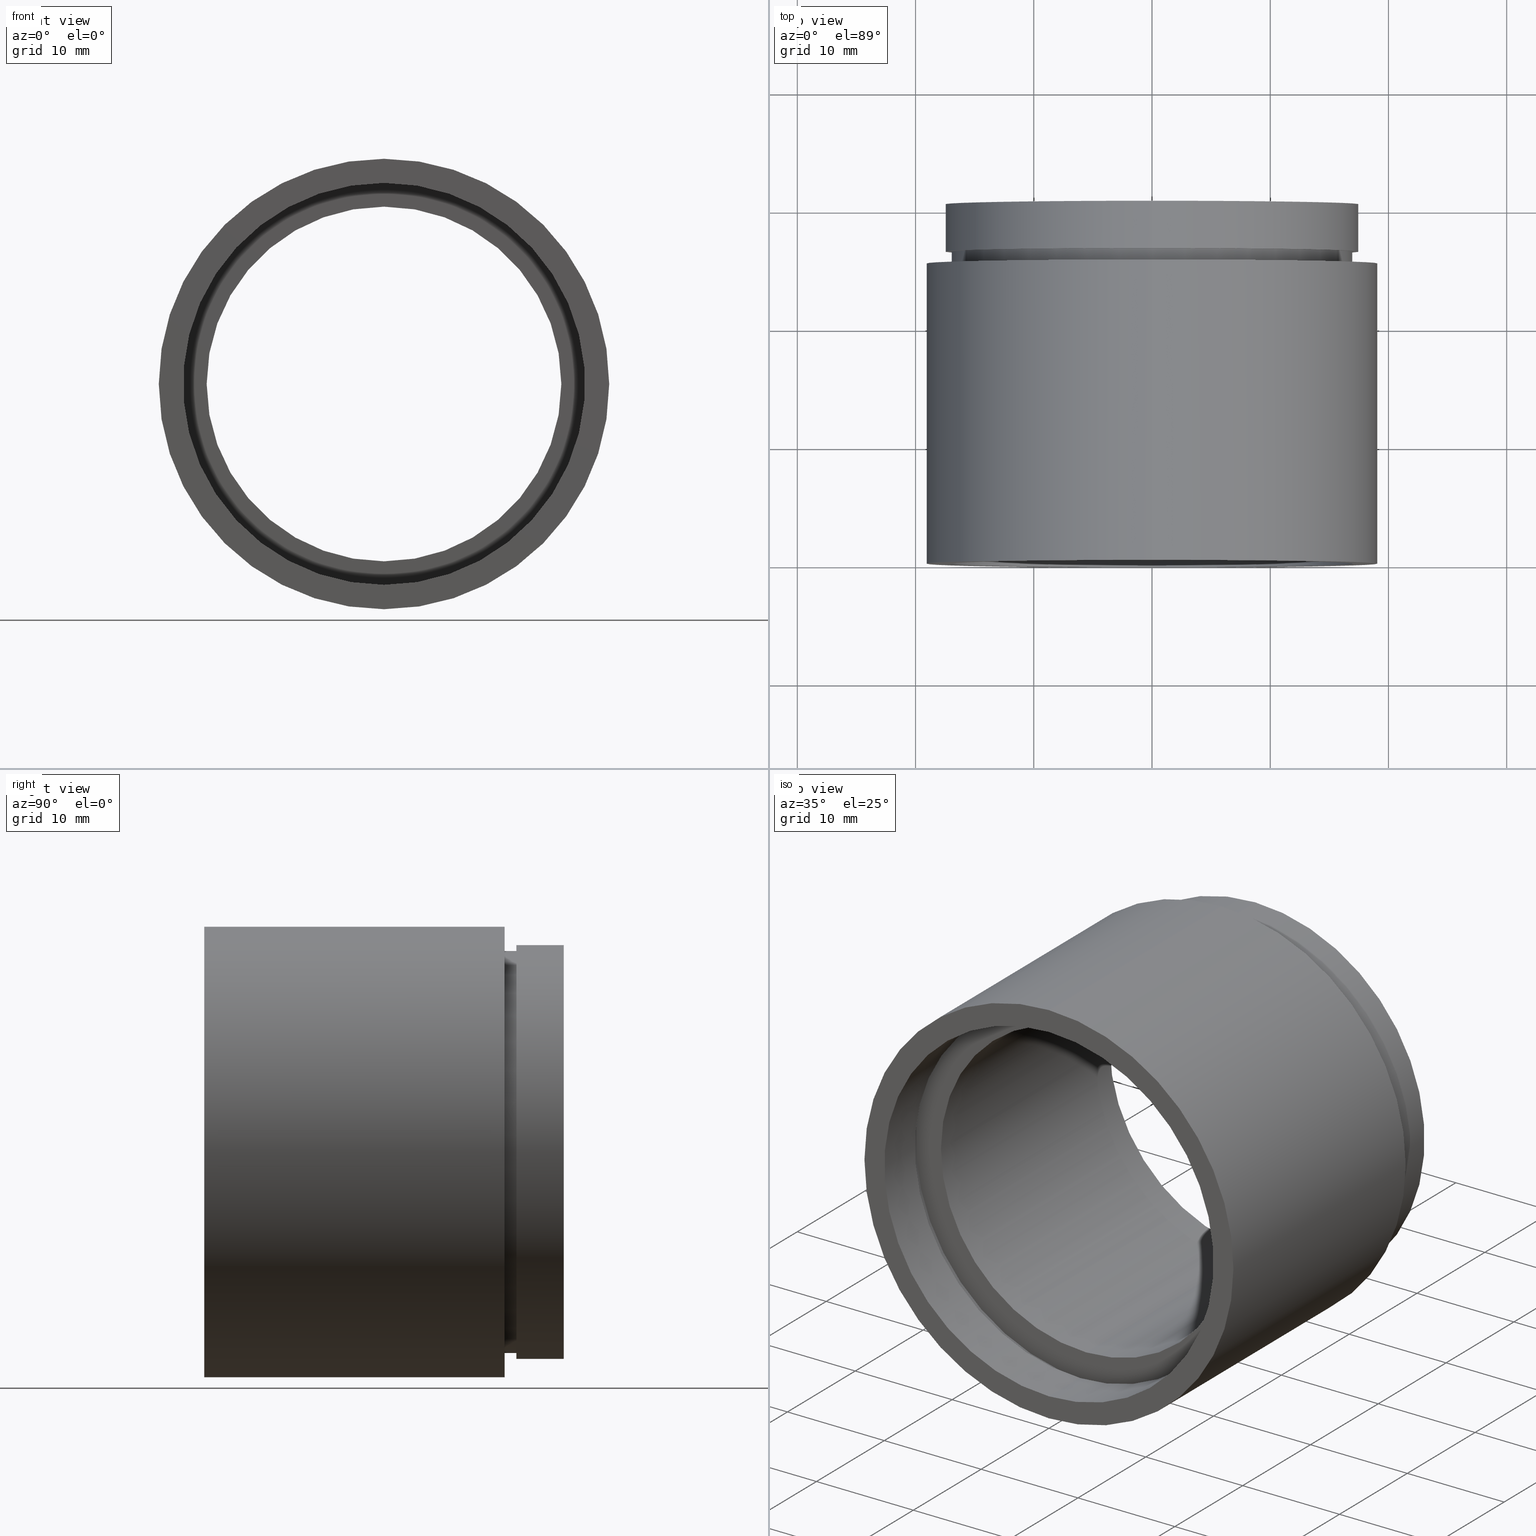
[diagram: canonical four-view strip — front | top / right | iso, engineering-drawing reading convention]
A machine part, canonical four-view strip (front | top / right | iso — engineering-drawing reading convention). The complete STEP part file that produces these views, byte-faithful:
ISO-10303-21;
HEADER;
FILE_DESCRIPTION (( 'STEP AP214' ),
    '1' );
FILE_NAME ('503036.STEP',
    '2019-09-05T09:16:39',
    ( '' ),
    ( '' ),
    'SwSTEP 2.0',
    'SolidWorks 2016',
    '' );
FILE_SCHEMA (( 'AUTOMOTIVE_DESIGN' ));
ENDSEC;

DATA;
#1 = EDGE_CURVE ( 'NONE', #109, #571, #252, .T. ) ;
#2 = ORIENTED_EDGE ( 'NONE', *, *, #201, .T. ) ;
#3 = VECTOR ( 'NONE', #280, 1000.000000000000000 ) ;
#4 = FILL_AREA_STYLE_COLOUR ( '', #563 ) ;
#5 = ORIENTED_EDGE ( 'NONE', *, *, #459, .T. ) ;
#6 = MECHANICAL_DESIGN_GEOMETRIC_PRESENTATION_REPRESENTATION (  '', ( #360 ), #99 ) ;
#7 = ORIENTED_EDGE ( 'NONE', *, *, #586, .F. ) ;
#8 = CARTESIAN_POINT ( 'NONE',  ( 0.0000000000000000000, 161.3761669434274500, 0.0000000000000000000 ) ) ;
#9 = SURFACE_SIDE_STYLE ('',( #372 ) ) ;
#10 = EDGE_LOOP ( 'NONE', ( #527, #57, #158, #417 ) ) ;
#11 = ORIENTED_EDGE ( 'NONE', *, *, #476, .T. ) ;
#12 = SURFACE_STYLE_USAGE ( .BOTH. , #375 ) ;
#13 = DIRECTION ( 'NONE',  ( -0.0000000000000000000, 1.000000000000000000, -0.0000000000000000000 ) ) ;
#14 = EDGE_CURVE ( 'NONE', #580, #85, #590, .T. ) ;
#15 = CARTESIAN_POINT ( 'NONE',  ( 2.155378366499344400E-015, 5.499999999999976900, -17.60000000000002300 ) ) ;
#16 = ADVANCED_FACE ( 'NONE', ( #40 ), #330, .T. ) ;
#17 = VERTEX_POINT ( 'NONE', #206 ) ;
#18 = DIRECTION ( 'NONE',  ( -0.0000000000000000000, 1.000000000000000000, -0.0000000000000000000 ) ) ;
#19 = FACE_OUTER_BOUND ( 'NONE', #166, .T. ) ;
#20 =( GEOMETRIC_REPRESENTATION_CONTEXT ( 3 ) GLOBAL_UNCERTAINTY_ASSIGNED_CONTEXT ( ( #178 ) ) GLOBAL_UNIT_ASSIGNED_CONTEXT ( ( #423, #388, #339 ) ) REPRESENTATION_CONTEXT ( 'NONE', 'WORKASPACE' ) );
#21 = CIRCLE ( 'NONE', #271, 15.00000000000001600 ) ;
#22 =( LENGTH_UNIT ( ) NAMED_UNIT ( * ) SI_UNIT ( .MILLI., .METRE. ) );
#23 = DIRECTION ( 'NONE',  ( 0.0000000000000000000, 0.0000000000000000000, 1.000000000000000000 ) ) ;
#24 = CARTESIAN_POINT ( 'NONE',  ( 0.0000000000000000000, 161.3761669434274500, 0.0000000000000000000 ) ) ;
#25 = EDGE_LOOP ( 'NONE', ( #272, #605 ) ) ;
#26 = FILL_AREA_STYLE ('',( #556 ) ) ;
#27 = ORIENTED_EDGE ( 'NONE', *, *, #586, .T. ) ;
#28 = ADVANCED_FACE ( 'NONE', ( #305 ), #600, .T. ) ;
#29 = AXIS2_PLACEMENT_3D ( 'NONE', #209, #18, #374 ) ;
#30 = FACE_OUTER_BOUND ( 'NONE', #282, .T. ) ;
#31 = CYLINDRICAL_SURFACE ( 'NONE', #496, 17.00000000000001400 ) ;
#32 = DIRECTION ( 'NONE',  ( -0.0000000000000000000, 1.000000000000000000, 0.0000000000000000000 ) ) ;
#33 = DIRECTION ( 'NONE',  ( -0.0000000000000000000, 1.000000000000000000, -0.0000000000000000000 ) ) ;
#34 = AXIS2_PLACEMENT_3D ( 'NONE', #479, #98, #483 ) ;
#35 = CARTESIAN_POINT ( 'NONE',  ( 0.0000000000000000000, 25.39999999999997700, 0.0000000000000000000 ) ) ;
#36 = EDGE_LOOP ( 'NONE', ( #237, #250, #204, #379 ) ) ;
#37 = DIRECTION ( 'NONE',  ( 1.000000000000000000, 0.0000000000000000000, 0.0000000000000000000 ) ) ;
#38 = COLOUR_RGB ( '',1.000000000000000000, 1.000000000000000000, 1.000000000000000000 ) ;
#39 = CIRCLE ( 'NONE', #163, 19.05000000000002200 ) ;
#40 = FACE_OUTER_BOUND ( 'NONE', #198, .T. ) ;
#41 = PRESENTATION_LAYER_ASSIGNMENT (  '', '', ( #248 ) ) ;
#42 = DIRECTION ( 'NONE',  ( 0.0000000000000000000, 0.0000000000000000000, 1.000000000000000000 ) ) ;
#43 = CARTESIAN_POINT ( 'NONE',  ( 2.081899558550503400E-015, 4.499999999999976000, -17.00000000000002500 ) ) ;
#44 = SURFACE_STYLE_USAGE ( .BOTH. , #519 ) ;
#45 = DIRECTION ( 'NONE',  ( 0.0000000000000000000, 0.0000000000000000000, 1.000000000000000000 ) ) ;
#46 = ORIENTED_EDGE ( 'NONE', *, *, #476, .F. ) ;
#47 = MANIFOLD_SOLID_BREP ( '��ת1', #101 ) ;
#48 = COLOUR_RGB ( '',1.000000000000000000, 1.000000000000000000, 1.000000000000000000 ) ;
#49 = SURFACE_STYLE_FILL_AREA ( #123 ) ;
#50 = DIRECTION ( 'NONE',  ( -0.0000000000000000000, 1.000000000000000000, -0.0000000000000000000 ) ) ;
#51 =( GEOMETRIC_REPRESENTATION_CONTEXT ( 3 ) GLOBAL_UNCERTAINTY_ASSIGNED_CONTEXT ( ( #324 ) ) GLOBAL_UNIT_ASSIGNED_CONTEXT ( ( #431, #622, #290 ) ) REPRESENTATION_CONTEXT ( 'NONE', 'WORKASPACE' ) );
#52 = PRODUCT_DEFINITION_CONTEXT ( 'detailed design', #97, 'design' ) ;
#53 = AXIS2_PLACEMENT_3D ( 'NONE', #608, #327, #332 ) ;
#54 = ORIENTED_EDGE ( 'NONE', *, *, #459, .F. ) ;
#55 = AXIS2_PLACEMENT_3D ( 'NONE', #348, #438, #301 ) ;
#56 = CIRCLE ( 'NONE', #157, 19.05000000000002200 ) ;
#57 = ORIENTED_EDGE ( 'NONE', *, *, #14, .T. ) ;
#58 = FACE_BOUND ( 'NONE', #127, .T. ) ;
#59 = EDGE_CURVE ( 'NONE', #60, #140, #366, .T. ) ;
#60 = VERTEX_POINT ( 'NONE', #534 ) ;
#61 =( GEOMETRIC_REPRESENTATION_CONTEXT ( 3 ) GLOBAL_UNCERTAINTY_ASSIGNED_CONTEXT ( ( #159 ) ) GLOBAL_UNIT_ASSIGNED_CONTEXT ( ( #75, #494, #540 ) ) REPRESENTATION_CONTEXT ( 'NONE', 'WORKASPACE' ) );
#62 = VERTEX_POINT ( 'NONE', #361 ) ;
#63 = CARTESIAN_POINT ( 'NONE',  ( 0.0000000000000000000, 161.3761669434274500, 0.0000000000000000000 ) ) ;
#64 = VECTOR ( 'NONE', #146, 1000.000000000000000 ) ;
#65 = CIRCLE ( 'NONE', #399, 19.05000000000002200 ) ;
#66 = CARTESIAN_POINT ( 'NONE',  ( 0.0000000000000000000, 161.3761669434274500, 0.0000000000000000000 ) ) ;
#67 = AXIS2_PLACEMENT_3D ( 'NONE', #170, #602, #548 ) ;
#68 = CARTESIAN_POINT ( 'NONE',  ( 0.0000000000000000000, 26.39999999999997700, 17.50000000000002500 ) ) ;
#69 = CARTESIAN_POINT ( 'NONE',  ( 0.0000000000000000000, 25.39999999999997700, 0.0000000000000000000 ) ) ;
#70 = EDGE_LOOP ( 'NONE', ( #552, #482, #211, #7 ) ) ;
#71 = ADVANCED_FACE ( 'NONE', ( #231 ), #162, .F. ) ;
#72 = CARTESIAN_POINT ( 'NONE',  ( 2.081899558550502300E-015, 161.3761669434274500, -17.00000000000001400 ) ) ;
#73 = VECTOR ( 'NONE', #489, 1000.000000000000000 ) ;
#74 = CIRCLE ( 'NONE', #67, 17.00000000000001400 ) ;
#75 =( LENGTH_UNIT ( ) NAMED_UNIT ( * ) SI_UNIT ( .MILLI., .METRE. ) );
#76 = EDGE_CURVE ( 'NONE', #85, #589, #493, .T. ) ;
#77 = ORIENTED_EDGE ( 'NONE', *, *, #318, .T. ) ;
#78 = CARTESIAN_POINT ( 'NONE',  ( 0.0000000000000000000, 161.3761669434274500, 0.0000000000000000000 ) ) ;
#79 = DIRECTION ( 'NONE',  ( -0.0000000000000000000, 1.000000000000000000, -0.0000000000000000000 ) ) ;
#80 = SURFACE_STYLE_FILL_AREA ( #402 ) ;
#81 = DIRECTION ( 'NONE',  ( -0.0000000000000000000, 1.000000000000000000, -0.0000000000000000000 ) ) ;
#82 = AXIS2_PLACEMENT_3D ( 'NONE', #196, #50, #353 ) ;
#83 = DIRECTION ( 'NONE',  ( -0.0000000000000000000, 1.000000000000000000, -0.0000000000000000000 ) ) ;
#84 = CARTESIAN_POINT ( 'NONE',  ( 17.50000000000002500, 30.39999999999998800, 0.0000000000000000000 ) ) ;
#85 = VERTEX_POINT ( 'NONE', #15 ) ;
#86 = AXIS2_PLACEMENT_3D ( 'NONE', #8, #205, #532 ) ;
#87 = LINE ( 'NONE', #572, #3 ) ;
#88 = CARTESIAN_POINT ( 'NONE',  ( 0.0000000000000000000, -2.775557561562891400E-014, 0.0000000000000000000 ) ) ;
#89 = AXIS2_PLACEMENT_3D ( 'NONE', #173, #32, #381 ) ;
#90 = SURFACE_SIDE_STYLE ('',( #131 ) ) ;
#91 = ORIENTED_EDGE ( 'NONE', *, *, #128, .T. ) ;
#92 = ORIENTED_EDGE ( 'NONE', *, *, #128, .F. ) ;
#93 = COLOUR_RGB ( '',1.000000000000000000, 1.000000000000000000, 1.000000000000000000 ) ;
#94 = DIRECTION ( 'NONE',  ( 0.0000000000000000000, 0.0000000000000000000, 1.000000000000000000 ) ) ;
#95 = LINE ( 'NONE', #239, #358 ) ;
#96 = AXIS2_PLACEMENT_3D ( 'NONE', #35, #283, #617 ) ;
#97 = APPLICATION_CONTEXT ( 'automotive_design' ) ;
#98 = DIRECTION ( 'NONE',  ( -0.0000000000000000000, 1.000000000000000000, -0.0000000000000000000 ) ) ;
#99 =( GEOMETRIC_REPRESENTATION_CONTEXT ( 3 ) GLOBAL_UNCERTAINTY_ASSIGNED_CONTEXT ( ( #511 ) ) GLOBAL_UNIT_ASSIGNED_CONTEXT ( ( #442, #200, #199 ) ) REPRESENTATION_CONTEXT ( 'NONE', 'WORKASPACE' ) );
#100 = AXIS2_PLACEMENT_3D ( 'NONE', #133, #478, #37 ) ;
#101 = CLOSED_SHELL ( 'NONE', ( #458, #129, #503, #262, #28, #169, #322, #16, #387, #553, #382, #273, #181, #543, #559, #512, #122, #71 ) ) ;
#102 = PRODUCT ( '503036', '503036', '', ( #576 ) ) ;
#103 = FACE_OUTER_BOUND ( 'NONE', #148, .T. ) ;
#104 = PRESENTATION_STYLE_ASSIGNMENT (( #385 ) ) ;
#105 = EDGE_CURVE ( 'NONE', #623, #214, #405, .T. ) ;
#106 = CARTESIAN_POINT ( 'NONE',  ( 0.0000000000000000000, 4.499999999999976000, 0.0000000000000000000 ) ) ;
#107 = SURFACE_SIDE_STYLE ('',( #80 ) ) ;
#108 = EDGE_CURVE ( 'NONE', #491, #344, #65, .T. ) ;
#109 = VERTEX_POINT ( 'NONE', #416 ) ;
#110 = ORIENTED_EDGE ( 'NONE', *, *, #59, .F. ) ;
#111 = PRESENTATION_LAYER_ASSIGNMENT (  '', '', ( #260 ) ) ;
#112 = DIRECTION ( 'NONE',  ( 0.0000000000000000000, 0.0000000000000000000, 1.000000000000000000 ) ) ;
#113 =( NAMED_UNIT ( * ) PLANE_ANGLE_UNIT ( ) SI_UNIT ( $, .RADIAN. ) );
#114 = ORIENTED_EDGE ( 'NONE', *, *, #308, .F. ) ;
#115 = VECTOR ( 'NONE', #313, 1000.000000000000000 ) ;
#116 = FACE_OUTER_BOUND ( 'NONE', #441, .T. ) ;
#117 = FACE_OUTER_BOUND ( 'NONE', #70, .T. ) ;
#118 = EDGE_CURVE ( 'NONE', #140, #214, #74, .T. ) ;
#119 = DIRECTION ( 'NONE',  ( -0.0000000000000000000, 1.000000000000000000, -0.0000000000000000000 ) ) ;
#120 = ORIENTED_EDGE ( 'NONE', *, *, #118, .T. ) ;
#121 = ORIENTED_EDGE ( 'NONE', *, *, #281, .F. ) ;
#122 = ADVANCED_FACE ( 'NONE', ( #194, #524 ), #164, .F. ) ;
#123 = FILL_AREA_STYLE ('',( #270 ) ) ;
#124 = AXIS2_PLACEMENT_3D ( 'NONE', #584, #516, #171 ) ;
#125 = CARTESIAN_POINT ( 'NONE',  ( 0.0000000000000000000, -2.775557561562891400E-014, 0.0000000000000000000 ) ) ;
#126 = DIRECTION ( 'NONE',  ( -0.0000000000000000000, 1.000000000000000000, -0.0000000000000000000 ) ) ;
#127 = EDGE_LOOP ( 'NONE', ( #120, #520 ) ) ;
#128 = EDGE_CURVE ( 'NONE', #497, #596, #616, .T. ) ;
#129 = ADVANCED_FACE ( 'NONE', ( #502 ), #444, .F. ) ;
#130 = DIRECTION ( 'NONE',  ( -0.0000000000000000000, 1.000000000000000000, -0.0000000000000000000 ) ) ;
#131 = SURFACE_STYLE_FILL_AREA ( #394 ) ;
#132 = CARTESIAN_POINT ( 'NONE',  ( 0.0000000000000000000, 161.3761669434274500, 0.0000000000000000000 ) ) ;
#133 = CARTESIAN_POINT ( 'NONE',  ( 0.0000000000000000000, 0.0000000000000000000, 0.0000000000000000000 ) ) ;
#134 = MECHANICAL_DESIGN_GEOMETRIC_PRESENTATION_REPRESENTATION (  '', ( #331 ), #51 ) ;
#135 = ORIENTED_EDGE ( 'NONE', *, *, #433, .T. ) ;
#136 = ORIENTED_EDGE ( 'NONE', *, *, #227, .F. ) ;
#137 = MECHANICAL_DESIGN_GEOMETRIC_PRESENTATION_REPRESENTATION (  '', ( #248 ), #594 ) ;
#138 = APPLICATION_PROTOCOL_DEFINITION ( 'draft international standard', 'automotive_design', 1998, #97 ) ;
#139 = PRESENTATION_STYLE_ASSIGNMENT (( #44 ) ) ;
#140 = VERTEX_POINT ( 'NONE', #220 ) ;
#141 = UNCERTAINTY_MEASURE_WITH_UNIT (LENGTH_MEASURE( 1.000000000000000100E-005 ), #577, 'distance_accuracy_value', 'NONE');
#142 = CARTESIAN_POINT ( 'NONE',  ( 0.0000000000000000000, 26.39999999999997700, 0.0000000000000000000 ) ) ;
#143 = ORIENTED_EDGE ( 'NONE', *, *, #207, .T. ) ;
#144 = EDGE_CURVE ( 'NONE', #596, #184, #523, .T. ) ;
#145 = DIRECTION ( 'NONE',  ( 0.0000000000000000000, 0.0000000000000000000, 1.000000000000000000 ) ) ;
#146 = DIRECTION ( 'NONE',  ( -0.0000000000000000000, 1.000000000000000000, -0.0000000000000000000 ) ) ;
#147 = EDGE_CURVE ( 'NONE', #623, #60, #233, .T. ) ;
#148 = EDGE_LOOP ( 'NONE', ( #288, #309, #398, #317 ) ) ;
#149 = CIRCLE ( 'NONE', #507, 17.00000000000002500 ) ;
#150 = SURFACE_STYLE_USAGE ( .BOTH. , #202 ) ;
#151 = LINE ( 'NONE', #224, #286 ) ;
#152 = CIRCLE ( 'NONE', #542, 17.60000000000002300 ) ;
#153 = SURFACE_STYLE_FILL_AREA ( #257 ) ;
#154 = DIRECTION ( 'NONE',  ( -0.0000000000000000000, 1.000000000000000000, -0.0000000000000000000 ) ) ;
#155 = DIRECTION ( 'NONE',  ( 0.0000000000000000000, 0.0000000000000000000, 1.000000000000000000 ) ) ;
#156 =( NAMED_UNIT ( * ) PLANE_ANGLE_UNIT ( ) SI_UNIT ( $, .RADIAN. ) );
#157 = AXIS2_PLACEMENT_3D ( 'NONE', #125, #81, #607 ) ;
#158 = ORIENTED_EDGE ( 'NONE', *, *, #76, .T. ) ;
#159 = UNCERTAINTY_MEASURE_WITH_UNIT (LENGTH_MEASURE( 1.000000000000000100E-005 ), #75, 'distance_accuracy_value', 'NONE');
#160 = DIRECTION ( 'NONE',  ( 0.0000000000000000000, 0.0000000000000000000, 1.000000000000000000 ) ) ;
#161 =( NAMED_UNIT ( * ) SI_UNIT ( $, .STERADIAN. ) SOLID_ANGLE_UNIT ( ) );
#162 = CYLINDRICAL_SURFACE ( 'NONE', #29, 17.00000000000002100 ) ;
#163 = AXIS2_PLACEMENT_3D ( 'NONE', #88, #346, #94 ) ;
#164 = PLANE ( 'NONE',  #425 ) ;
#165 = AXIS2_PLACEMENT_3D ( 'NONE', #588, #359, #155 ) ;
#166 = EDGE_LOOP ( 'NONE', ( #450, #454 ) ) ;
#167 = DIRECTION ( 'NONE',  ( -0.0000000000000000000, 1.000000000000000000, -0.0000000000000000000 ) ) ;
#168 = VECTOR ( 'NONE', #261, 1000.000000000000000 ) ;
#169 = ADVANCED_FACE ( 'NONE', ( #117 ), #485, .T. ) ;
#170 = CARTESIAN_POINT ( 'NONE',  ( 0.0000000000000000000, 26.39999999999997700, 0.0000000000000000000 ) ) ;
#171 = DIRECTION ( 'NONE',  ( 0.0000000000000000000, 0.0000000000000000000, 1.000000000000000000 ) ) ;
#172 = ORIENTED_EDGE ( 'NONE', *, *, #144, .T. ) ;
#173 = CARTESIAN_POINT ( 'NONE',  ( 17.60000000000002300, 5.499999999999983100, 0.0000000000000000000 ) ) ;
#174 = PRODUCT_RELATED_PRODUCT_CATEGORY ( 'part', '', ( #102 ) ) ;
#175 = VECTOR ( 'NONE', #530, 1000.000000000000000 ) ;
#176 = SURFACE_SIDE_STYLE ('',( #49 ) ) ;
#177 = DIRECTION ( 'NONE',  ( 0.0000000000000000000, 0.0000000000000000000, 1.000000000000000000 ) ) ;
#178 = UNCERTAINTY_MEASURE_WITH_UNIT (LENGTH_MEASURE( 1.000000000000000100E-005 ), #423, 'distance_accuracy_value', 'NONE');
#179 = CARTESIAN_POINT ( 'NONE',  ( 0.0000000000000000000, 5.499999999999976900, 17.60000000000002300 ) ) ;
#180 = CARTESIAN_POINT ( 'NONE',  ( 0.0000000000000000000, 26.39999999999997700, 0.0000000000000000000 ) ) ;
#181 = ADVANCED_FACE ( 'NONE', ( #218, #287 ), #510, .F. ) ;
#182 =( NAMED_UNIT ( * ) PLANE_ANGLE_UNIT ( ) SI_UNIT ( $, .RADIAN. ) );
#183 = DIRECTION ( 'NONE',  ( -0.0000000000000000000, 1.000000000000000000, -0.0000000000000000000 ) ) ;
#184 = VERTEX_POINT ( 'NONE', #377 ) ;
#185 = EDGE_CURVE ( 'NONE', #589, #85, #578, .T. ) ;
#186 = CIRCLE ( 'NONE', #124, 17.50000000000002500 ) ;
#187 = EDGE_LOOP ( 'NONE', ( #121, #370, #299, #240 ) ) ;
#188 = VECTOR ( 'NONE', #574, 1000.000000000000000 ) ;
#189 = CARTESIAN_POINT ( 'NONE',  ( 0.0000000000000000000, 161.3761669434274500, 0.0000000000000000000 ) ) ;
#190 = ORIENTED_EDGE ( 'NONE', *, *, #105, .T. ) ;
#191 = VERTEX_POINT ( 'NONE', #334 ) ;
#192 = CARTESIAN_POINT ( 'NONE',  ( 0.0000000000000000000, 161.3761669434274500, 0.0000000000000000000 ) ) ;
#193 = CYLINDRICAL_SURFACE ( 'NONE', #213, 15.00000000000001600 ) ;
#194 = FACE_BOUND ( 'NONE', #230, .T. ) ;
#195 = EDGE_CURVE ( 'NONE', #62, #497, #457, .T. ) ;
#196 = CARTESIAN_POINT ( 'NONE',  ( 0.0000000000000000000, 30.39999999999998400, 0.0000000000000000000 ) ) ;
#197 = CARTESIAN_POINT ( 'NONE',  ( 0.0000000000000000000, 161.3761669434274500, 15.00000000000001600 ) ) ;
#198 = EDGE_LOOP ( 'NONE', ( #389, #292, #27, #593 ) ) ;
#199 =( NAMED_UNIT ( * ) SI_UNIT ( $, .STERADIAN. ) SOLID_ANGLE_UNIT ( ) );
#200 =( NAMED_UNIT ( * ) PLANE_ANGLE_UNIT ( ) SI_UNIT ( $, .RADIAN. ) );
#201 = EDGE_CURVE ( 'NONE', #191, #620, #551, .T. ) ;
#202 = SURFACE_SIDE_STYLE ('',( #153 ) ) ;
#203 = DIRECTION ( 'NONE',  ( 0.0000000000000000000, 0.0000000000000000000, 1.000000000000000000 ) ) ;
#204 = ORIENTED_EDGE ( 'NONE', *, *, #371, .T. ) ;
#205 = DIRECTION ( 'NONE',  ( -0.0000000000000000000, 1.000000000000000000, -0.0000000000000000000 ) ) ;
#206 = CARTESIAN_POINT ( 'NONE',  ( 2.332952152375710400E-015, -2.775557561562891400E-014, -19.05000000000002200 ) ) ;
#207 = EDGE_CURVE ( 'NONE', #500, #580, #152, .T. ) ;
#208 = AXIS2_PLACEMENT_3D ( 'NONE', #189, #342, #45 ) ;
#209 = CARTESIAN_POINT ( 'NONE',  ( 0.0000000000000000000, 161.3761669434274500, 0.0000000000000000000 ) ) ;
#210 = CARTESIAN_POINT ( 'NONE',  ( 0.0000000000000000000, 25.39999999999997700, 19.05000000000002200 ) ) ;
#211 = ORIENTED_EDGE ( 'NONE', *, *, #108, .F. ) ;
#212 = AXIS2_PLACEMENT_3D ( 'NONE', #447, #154, #112 ) ;
#213 = AXIS2_PLACEMENT_3D ( 'NONE', #78, #222, #275 ) ;
#214 = VERTEX_POINT ( 'NONE', #554 ) ;
#215 = DIRECTION ( 'NONE',  ( 0.0000000000000000000, 0.0000000000000000000, 1.000000000000000000 ) ) ;
#216 = VERTEX_POINT ( 'NONE', #380 ) ;
#217 = ORIENTED_EDGE ( 'NONE', *, *, #515, .T. ) ;
#218 = FACE_BOUND ( 'NONE', #323, .T. ) ;
#219 = ORIENTED_EDGE ( 'NONE', *, *, #59, .T. ) ;
#220 = CARTESIAN_POINT ( 'NONE',  ( 0.0000000000000000000, 26.39999999999997700, 17.00000000000001400 ) ) ;
#221 = AXIS2_PLACEMENT_3D ( 'NONE', #192, #234, #473 ) ;
#222 = DIRECTION ( 'NONE',  ( -0.0000000000000000000, 1.000000000000000000, -0.0000000000000000000 ) ) ;
#223 = DIRECTION ( 'NONE',  ( -0.0000000000000000000, 1.000000000000000000, -0.0000000000000000000 ) ) ;
#224 = CARTESIAN_POINT ( 'NONE',  ( 0.0000000000000000000, 161.3761669434274500, 19.05000000000002200 ) ) ;
#225 = PLANE ( 'NONE',  #541 ) ;
#226 = CARTESIAN_POINT ( 'NONE',  ( 0.0000000000000000000, 5.499999999999976900, 0.0000000000000000000 ) ) ;
#227 = EDGE_CURVE ( 'NONE', #571, #420, #95, .T. ) ;
#228 = DIRECTION ( 'NONE',  ( 0.0000000000000000000, 0.0000000000000000000, 1.000000000000000000 ) ) ;
#229 = FACE_OUTER_BOUND ( 'NONE', #187, .T. ) ;
#230 = EDGE_LOOP ( 'NONE', ( #509, #54 ) ) ;
#231 = FACE_OUTER_BOUND ( 'NONE', #274, .T. ) ;
#232 = PRESENTATION_STYLE_ASSIGNMENT (( #508 ) ) ;
#233 = CIRCLE ( 'NONE', #266, 17.00000000000001400 ) ;
#234 = DIRECTION ( 'NONE',  ( -0.0000000000000000000, 1.000000000000000000, -0.0000000000000000000 ) ) ;
#235 = FILL_AREA_STYLE_COLOUR ( '', #304 ) ;
#236 = DIRECTION ( 'NONE',  ( 0.0000000000000000000, 0.0000000000000000000, 1.000000000000000000 ) ) ;
#237 = ORIENTED_EDGE ( 'NONE', *, *, #14, .F. ) ;
#238 = EDGE_CURVE ( 'NONE', #434, #17, #39, .T. ) ;
#239 = CARTESIAN_POINT ( 'NONE',  ( 2.081899558550503000E-015, 161.3761669434274500, -17.00000000000002100 ) ) ;
#240 = ORIENTED_EDGE ( 'NONE', *, *, #308, .T. ) ;
#241 = SURFACE_STYLE_USAGE ( .BOTH. , #90 ) ;
#242 = ORIENTED_EDGE ( 'NONE', *, *, #195, .T. ) ;
#243 = PRESENTATION_STYLE_ASSIGNMENT (( #12 ) ) ;
#244 = AXIS2_PLACEMENT_3D ( 'NONE', #142, #400, #439 ) ;
#245 = SURFACE_STYLE_FILL_AREA ( #26 ) ;
#246 = LINE ( 'NONE', #517, #188 ) ;
#247 = DIRECTION ( 'NONE',  ( -0.0000000000000000000, 1.000000000000000000, 0.0000000000000000000 ) ) ;
#248 = STYLED_ITEM ( 'NONE', ( #312 ), #71 ) ;
#249 = DIRECTION ( 'NONE',  ( 0.0000000000000000000, 0.0000000000000000000, 1.000000000000000000 ) ) ;
#250 = ORIENTED_EDGE ( 'NONE', *, *, #207, .F. ) ;
#251 = CYLINDRICAL_SURFACE ( 'NONE', #293, 17.00000000000002100 ) ;
#252 = CIRCLE ( 'NONE', #212, 17.00000000000002100 ) ;
#253 = SHAPE_DEFINITION_REPRESENTATION ( #414, #352 ) ;
#254 = VECTOR ( 'NONE', #536, 1000.000000000000000 ) ;
#255 =( NAMED_UNIT ( * ) SI_UNIT ( $, .STERADIAN. ) SOLID_ANGLE_UNIT ( ) );
#256 = AXIS2_PLACEMENT_3D ( 'NONE', #66, #13, #42 ) ;
#257 = FILL_AREA_STYLE ('',( #539 ) ) ;
#258 = CARTESIAN_POINT ( 'NONE',  ( 0.0000000000000000000, 4.499999999999976000, 17.00000000000002500 ) ) ;
#259 = CIRCLE ( 'NONE', #244, 17.00000000000001400 ) ;
#260 = STYLED_ITEM ( 'NONE', ( #232 ), #543 ) ;
#261 = DIRECTION ( 'NONE',  ( -0.0000000000000000000, 1.000000000000000000, -0.0000000000000000000 ) ) ;
#262 = ADVANCED_FACE ( 'NONE', ( #592 ), #329, .T. ) ;
#263 = AXIS2_PLACEMENT_3D ( 'NONE', #531, #247, #145 ) ;
#264 = EDGE_LOOP ( 'NONE', ( #143, #135 ) ) ;
#265 = ORIENTED_EDGE ( 'NONE', *, *, #604, .T. ) ;
#266 = AXIS2_PLACEMENT_3D ( 'NONE', #386, #126, #177 ) ;
#267 = DIRECTION ( 'NONE',  ( 0.0000000000000000000, 0.0000000000000000000, 1.000000000000000000 ) ) ;
#268 = APPLICATION_PROTOCOL_DEFINITION ( 'draft international standard', 'automotive_design', 1998, #504 ) ;
#269 = UNCERTAINTY_MEASURE_WITH_UNIT (LENGTH_MEASURE( 1.000000000000000100E-005 ), #362, 'distance_accuracy_value', 'NONE');
#270 = FILL_AREA_STYLE_COLOUR ( '', #38 ) ;
#271 = AXIS2_PLACEMENT_3D ( 'NONE', #567, #33, #391 ) ;
#272 = ORIENTED_EDGE ( 'NONE', *, *, #185, .F. ) ;
#273 = ADVANCED_FACE ( 'NONE', ( #30 ), #561, .T. ) ;
#274 = EDGE_LOOP ( 'NONE', ( #136, #465, #376, #77 ) ) ;
#275 = DIRECTION ( 'NONE',  ( 0.0000000000000000000, 0.0000000000000000000, 1.000000000000000000 ) ) ;
#276 = PRESENTATION_STYLE_ASSIGNMENT (( #449 ) ) ;
#277 = CARTESIAN_POINT ( 'NONE',  ( 0.0000000000000000000, 161.3761669434274500, 0.0000000000000000000 ) ) ;
#278 = DIRECTION ( 'NONE',  ( 0.0000000000000000000, -0.0000000000000000000, -1.000000000000000000 ) ) ;
#279 = CARTESIAN_POINT ( 'NONE',  ( 0.0000000000000000000, 30.39999999999998400, 0.0000000000000000000 ) ) ;
#280 = DIRECTION ( 'NONE',  ( -0.0000000000000000000, 1.000000000000000000, -0.0000000000000000000 ) ) ;
#281 = EDGE_CURVE ( 'NONE', #620, #575, #87, .T. ) ;
#282 = EDGE_LOOP ( 'NONE', ( #46, #242, #91, #347 ) ) ;
#283 = DIRECTION ( 'NONE',  ( -0.0000000000000000000, 1.000000000000000000, -0.0000000000000000000 ) ) ;
#284 = FILL_AREA_STYLE_COLOUR ( '', #474 ) ;
#285 = FACE_OUTER_BOUND ( 'NONE', #328, .T. ) ;
#286 = VECTOR ( 'NONE', #130, 1000.000000000000000 ) ;
#287 = FACE_OUTER_BOUND ( 'NONE', #409, .T. ) ;
#288 = ORIENTED_EDGE ( 'NONE', *, *, #604, .F. ) ;
#289 = AXIS2_PLACEMENT_3D ( 'NONE', #279, #83, #228 ) ;
#290 =( NAMED_UNIT ( * ) SI_UNIT ( $, .STERADIAN. ) SOLID_ANGLE_UNIT ( ) );
#291 =( NAMED_UNIT ( * ) PLANE_ANGLE_UNIT ( ) SI_UNIT ( $, .RADIAN. ) );
#292 = ORIENTED_EDGE ( 'NONE', *, *, #518, .T. ) ;
#293 = AXIS2_PLACEMENT_3D ( 'NONE', #585, #406, #407 ) ;
#294 = FACE_OUTER_BOUND ( 'NONE', #451, .T. ) ;
#295 = UNCERTAINTY_MEASURE_WITH_UNIT (LENGTH_MEASURE( 1.000000000000000100E-005 ), #452, 'distance_accuracy_value', 'NONE');
#296 = EDGE_CURVE ( 'NONE', #17, #344, #246, .T. ) ;
#297 = CARTESIAN_POINT ( 'NONE',  ( 0.0000000000000000000, 161.3761669434274500, 17.60000000000002300 ) ) ;
#298 = ORIENTED_EDGE ( 'NONE', *, *, #599, .T. ) ;
#299 = ORIENTED_EDGE ( 'NONE', *, *, #343, .T. ) ;
#300 = AXIS2_PLACEMENT_3D ( 'NONE', #106, #490, #203 ) ;
#301 = DIRECTION ( 'NONE',  ( 0.0000000000000000000, 0.0000000000000000000, 1.000000000000000000 ) ) ;
#302 = CIRCLE ( 'NONE', #96, 17.00000000000001400 ) ;
#303 = FACE_BOUND ( 'NONE', #326, .T. ) ;
#304 = COLOUR_RGB ( '',1.000000000000000000, 1.000000000000000000, 1.000000000000000000 ) ;
#305 = FACE_OUTER_BOUND ( 'NONE', #538, .T. ) ;
#306 = CARTESIAN_POINT ( 'NONE',  ( 2.155378366499344400E-015, 161.3761669434274500, -17.60000000000002300 ) ) ;
#307 = FILL_AREA_STYLE ('',( #443 ) ) ;
#308 = EDGE_CURVE ( 'NONE', #216, #575, #573, .T. ) ;
#309 = ORIENTED_EDGE ( 'NONE', *, *, #281, .T. ) ;
#310 =( GEOMETRIC_REPRESENTATION_CONTEXT ( 3 ) GLOBAL_UNCERTAINTY_ASSIGNED_CONTEXT ( ( #413 ) ) GLOBAL_UNIT_ASSIGNED_CONTEXT ( ( #22, #182, #613 ) ) REPRESENTATION_CONTEXT ( 'NONE', 'WORKASPACE' ) );
#311 = CIRCLE ( 'NONE', #314, 15.00000000000001800 ) ;
#312 = PRESENTATION_STYLE_ASSIGNMENT (( #446 ) ) ;
#313 = DIRECTION ( 'NONE',  ( -0.0000000000000000000, 1.000000000000000000, -0.0000000000000000000 ) ) ;
#314 = AXIS2_PLACEMENT_3D ( 'NONE', #481, #396, #356 ) ;
#315 = DIRECTION ( 'NONE',  ( -0.0000000000000000000, 1.000000000000000000, -0.0000000000000000000 ) ) ;
#316 = ORIENTED_EDGE ( 'NONE', *, *, #408, .T. ) ;
#317 = ORIENTED_EDGE ( 'NONE', *, *, #343, .F. ) ;
#318 = EDGE_CURVE ( 'NONE', #461, #420, #411, .T. ) ;
#319 = FACE_BOUND ( 'NONE', #364, .T. ) ;
#320 = DIRECTION ( 'NONE',  ( 0.0000000000000000000, -1.000000000000000000, 0.0000000000000000000 ) ) ;
#321 = PRESENTATION_LAYER_ASSIGNMENT (  '', '', ( #535 ) ) ;
#322 = ADVANCED_FACE ( 'NONE', ( #116, #319 ), #436, .F. ) ;
#323 = EDGE_LOOP ( 'NONE', ( #114, #526 ) ) ;
#324 = UNCERTAINTY_MEASURE_WITH_UNIT (LENGTH_MEASURE( 1.000000000000000100E-005 ), #431, 'distance_accuracy_value', 'NONE');
#325 = SURFACE_SIDE_STYLE ('',( #245 ) ) ;
#326 = EDGE_LOOP ( 'NONE', ( #2, #265 ) ) ;
#327 = DIRECTION ( 'NONE',  ( -0.0000000000000000000, 1.000000000000000000, -0.0000000000000000000 ) ) ;
#328 = EDGE_LOOP ( 'NONE', ( #355, #363 ) ) ;
#329 = CYLINDRICAL_SURFACE ( 'NONE', #208, 17.50000000000002500 ) ;
#330 = CYLINDRICAL_SURFACE ( 'NONE', #86, 19.05000000000002200 ) ;
#331 = STYLED_ITEM ( 'NONE', ( #139 ), #262 ) ;
#332 = DIRECTION ( 'NONE',  ( 0.0000000000000000000, 0.0000000000000000000, 1.000000000000000000 ) ) ;
#333 = DIRECTION ( 'NONE',  ( 0.0000000000000000000, 0.0000000000000000000, 1.000000000000000000 ) ) ;
#334 = CARTESIAN_POINT ( 'NONE',  ( 0.0000000000000000000, 5.499999999999976900, 15.00000000000001600 ) ) ;
#335 = EDGE_CURVE ( 'NONE', #214, #140, #259, .T. ) ;
#336 = CARTESIAN_POINT ( 'NONE',  ( 2.155378366499344400E-015, 4.499999999999976000, -17.60000000000002300 ) ) ;
#337 = CARTESIAN_POINT ( 'NONE',  ( 17.00000000000001400, 26.39999999999998100, 0.0000000000000000000 ) ) ;
#338 = ORIENTED_EDGE ( 'NONE', *, *, #227, .T. ) ;
#339 =( NAMED_UNIT ( * ) SI_UNIT ( $, .STERADIAN. ) SOLID_ANGLE_UNIT ( ) );
#340 =( GEOMETRIC_REPRESENTATION_CONTEXT ( 3 ) GLOBAL_UNCERTAINTY_ASSIGNED_CONTEXT ( ( #269 ) ) GLOBAL_UNIT_ASSIGNED_CONTEXT ( ( #362, #156, #255 ) ) REPRESENTATION_CONTEXT ( 'NONE', 'WORKASPACE' ) );
#341 = DIRECTION ( 'NONE',  ( 0.0000000000000000000, 0.0000000000000000000, 1.000000000000000000 ) ) ;
#342 = DIRECTION ( 'NONE',  ( -0.0000000000000000000, 1.000000000000000000, -0.0000000000000000000 ) ) ;
#343 = EDGE_CURVE ( 'NONE', #191, #216, #437, .T. ) ;
#344 = VERTEX_POINT ( 'NONE', #579 ) ;
#345 = COLOUR_RGB ( '',1.000000000000000000, 1.000000000000000000, 1.000000000000000000 ) ;
#346 = DIRECTION ( 'NONE',  ( -0.0000000000000000000, 1.000000000000000000, -0.0000000000000000000 ) ) ;
#347 = ORIENTED_EDGE ( 'NONE', *, *, #599, .F. ) ;
#348 = CARTESIAN_POINT ( 'NONE',  ( 0.0000000000000000000, 161.3761669434274500, 0.0000000000000000000 ) ) ;
#349 = ORIENTED_EDGE ( 'NONE', *, *, #518, .F. ) ;
#350 = AXIS2_PLACEMENT_3D ( 'NONE', #277, #562, #215 ) ;
#351 = MECHANICAL_DESIGN_GEOMETRIC_PRESENTATION_REPRESENTATION (  '', ( #535 ), #20 ) ;
#352 = ADVANCED_BREP_SHAPE_REPRESENTATION ( '503036', ( #47, #100 ), #395 ) ;
#353 = DIRECTION ( 'NONE',  ( 0.0000000000000000000, 0.0000000000000000000, 1.000000000000000000 ) ) ;
#354 = PRESENTATION_LAYER_ASSIGNMENT (  '', '', ( #521 ) ) ;
#355 = ORIENTED_EDGE ( 'NONE', *, *, #515, .F. ) ;
#356 = DIRECTION ( 'NONE',  ( 0.0000000000000000000, 0.0000000000000000000, 1.000000000000000000 ) ) ;
#357 = PRESENTATION_STYLE_ASSIGNMENT (( #241 ) ) ;
#358 = VECTOR ( 'NONE', #183, 1000.000000000000000 ) ;
#359 = DIRECTION ( 'NONE',  ( -0.0000000000000000000, 1.000000000000000000, -0.0000000000000000000 ) ) ;
#360 = STYLED_ITEM ( 'NONE', ( #424 ), #47 ) ;
#361 = CARTESIAN_POINT ( 'NONE',  ( 2.143131898507871400E-015, 26.39999999999997700, -17.50000000000002500 ) ) ;
#362 =( LENGTH_UNIT ( ) NAMED_UNIT ( * ) SI_UNIT ( .MILLI., .METRE. ) );
#363 = ORIENTED_EDGE ( 'NONE', *, *, #195, .F. ) ;
#364 = EDGE_LOOP ( 'NONE', ( #440, #403 ) ) ;
#365 = ORIENTED_EDGE ( 'NONE', *, *, #147, .F. ) ;
#366 = LINE ( 'NONE', #587, #254 ) ;
#367 = CARTESIAN_POINT ( 'NONE',  ( 0.0000000000000000000, 5.499999999999976900, 0.0000000000000000000 ) ) ;
#368 = FILL_AREA_STYLE ('',( #373 ) ) ;
#369 = CYLINDRICAL_SURFACE ( 'NONE', #55, 17.60000000000002300 ) ;
#370 = ORIENTED_EDGE ( 'NONE', *, *, #201, .F. ) ;
#371 = EDGE_CURVE ( 'NONE', #500, #589, #456, .T. ) ;
#372 = SURFACE_STYLE_FILL_AREA ( #307 ) ;
#373 = FILL_AREA_STYLE_COLOUR ( '', #345 ) ;
#374 = DIRECTION ( 'NONE',  ( 0.0000000000000000000, 0.0000000000000000000, 1.000000000000000000 ) ) ;
#375 = SURFACE_SIDE_STYLE ('',( #598 ) ) ;
#376 = ORIENTED_EDGE ( 'NONE', *, *, #487, .T. ) ;
#377 = CARTESIAN_POINT ( 'NONE',  ( 2.143131898507871400E-015, 30.39999999999998400, -17.50000000000002500 ) ) ;
#378 = AXIS2_PLACEMENT_3D ( 'NONE', #367, #315, #597 ) ;
#379 = ORIENTED_EDGE ( 'NONE', *, *, #185, .T. ) ;
#380 = CARTESIAN_POINT ( 'NONE',  ( 0.0000000000000000000, 30.39999999999998400, 15.00000000000001800 ) ) ;
#381 = DIRECTION ( 'NONE',  ( 0.0000000000000000000, 0.0000000000000000000, 1.000000000000000000 ) ) ;
#382 = ADVANCED_FACE ( 'NONE', ( #285, #58 ), #225, .F. ) ;
#383 = CARTESIAN_POINT ( 'NONE',  ( 0.0000000000000000000, 161.3761669434274500, 17.50000000000002500 ) ) ;
#384 = AXIS2_PLACEMENT_3D ( 'NONE', #226, #421, #23 ) ;
#385 = SURFACE_STYLE_USAGE ( .BOTH. , #325 ) ;
#386 = CARTESIAN_POINT ( 'NONE',  ( 0.0000000000000000000, 25.39999999999997700, 0.0000000000000000000 ) ) ;
#387 = ADVANCED_FACE ( 'NONE', ( #549, #19 ), #570, .F. ) ;
#388 =( NAMED_UNIT ( * ) PLANE_ANGLE_UNIT ( ) SI_UNIT ( $, .RADIAN. ) );
#389 = ORIENTED_EDGE ( 'NONE', *, *, #296, .F. ) ;
#390 = DIRECTION ( 'NONE',  ( -0.0000000000000000000, 1.000000000000000000, -0.0000000000000000000 ) ) ;
#391 = DIRECTION ( 'NONE',  ( 0.0000000000000000000, 0.0000000000000000000, 1.000000000000000000 ) ) ;
#392 = EDGE_CURVE ( 'NONE', #344, #491, #484, .T. ) ;
#393 = ORIENTED_EDGE ( 'NONE', *, *, #238, .F. ) ;
#394 = FILL_AREA_STYLE ('',( #284 ) ) ;
#395 =( GEOMETRIC_REPRESENTATION_CONTEXT ( 3 ) GLOBAL_UNCERTAINTY_ASSIGNED_CONTEXT ( ( #460 ) ) GLOBAL_UNIT_ASSIGNED_CONTEXT ( ( #463, #426, #471 ) ) REPRESENTATION_CONTEXT ( 'NONE', 'WORKASPACE' ) );
#396 = DIRECTION ( 'NONE',  ( -0.0000000000000000000, 1.000000000000000000, -0.0000000000000000000 ) ) ;
#397 = CARTESIAN_POINT ( 'NONE',  ( 0.0000000000000000000, -2.775557561562891400E-014, 19.05000000000002200 ) ) ;
#398 = ORIENTED_EDGE ( 'NONE', *, *, #418, .T. ) ;
#399 = AXIS2_PLACEMENT_3D ( 'NONE', #69, #415, #455 ) ;
#400 = DIRECTION ( 'NONE',  ( -0.0000000000000000000, 1.000000000000000000, -0.0000000000000000000 ) ) ;
#401 = PRESENTATION_LAYER_ASSIGNMENT (  '', '', ( #331 ) ) ;
#402 = FILL_AREA_STYLE ('',( #4 ) ) ;
#403 = ORIENTED_EDGE ( 'NONE', *, *, #430, .T. ) ;
#404 = LINE ( 'NONE', #486, #115 ) ;
#405 = LINE ( 'NONE', #72, #529 ) ;
#406 = DIRECTION ( 'NONE',  ( -0.0000000000000000000, 1.000000000000000000, -0.0000000000000000000 ) ) ;
#407 = DIRECTION ( 'NONE',  ( 0.0000000000000000000, 0.0000000000000000000, 1.000000000000000000 ) ) ;
#408 = EDGE_CURVE ( 'NONE', #60, #623, #302, .T. ) ;
#409 = EDGE_LOOP ( 'NONE', ( #172, #298 ) ) ;
#410 = MECHANICAL_DESIGN_GEOMETRIC_PRESENTATION_REPRESENTATION (  '', ( #260 ), #310 ) ;
#411 = CIRCLE ( 'NONE', #34, 17.00000000000002500 ) ;
#412 = COLOUR_RGB ( '',1.000000000000000000, 1.000000000000000000, 1.000000000000000000 ) ;
#413 = UNCERTAINTY_MEASURE_WITH_UNIT (LENGTH_MEASURE( 1.000000000000000100E-005 ), #22, 'distance_accuracy_value', 'NONE');
#414 = PRODUCT_DEFINITION_SHAPE ( 'NONE', 'NONE',  #428 ) ;
#415 = DIRECTION ( 'NONE',  ( -0.0000000000000000000, 1.000000000000000000, -0.0000000000000000000 ) ) ;
#416 = CARTESIAN_POINT ( 'NONE',  ( 0.0000000000000000000, -2.775557561562891400E-014, 17.00000000000002100 ) ) ;
#417 = ORIENTED_EDGE ( 'NONE', *, *, #371, .F. ) ;
#418 = EDGE_CURVE ( 'NONE', #575, #216, #311, .T. ) ;
#419 = CARTESIAN_POINT ( 'NONE',  ( 1.836970198721032000E-015, 5.499999999999976900, -15.00000000000001600 ) ) ;
#420 = VERTEX_POINT ( 'NONE', #43 ) ;
#421 = DIRECTION ( 'NONE',  ( -0.0000000000000000000, 1.000000000000000000, -0.0000000000000000000 ) ) ;
#422 = EDGE_LOOP ( 'NONE', ( #557, #448, #219, #558 ) ) ;
#423 =( LENGTH_UNIT ( ) NAMED_UNIT ( * ) SI_UNIT ( .MILLI., .METRE. ) );
#424 = PRESENTATION_STYLE_ASSIGNMENT (( #150 ) ) ;
#425 = AXIS2_PLACEMENT_3D ( 'NONE', #544, #320, #610 ) ;
#426 =( NAMED_UNIT ( * ) PLANE_ANGLE_UNIT ( ) SI_UNIT ( $, .RADIAN. ) );
#427 = DIRECTION ( 'NONE',  ( 0.0000000000000000000, -1.000000000000000000, 0.0000000000000000000 ) ) ;
#428 = PRODUCT_DEFINITION ( 'δ֪', '', #583, #52 ) ;
#429 = FILL_AREA_STYLE ('',( #235 ) ) ;
#430 = EDGE_CURVE ( 'NONE', #571, #109, #614, .T. ) ;
#431 =( LENGTH_UNIT ( ) NAMED_UNIT ( * ) SI_UNIT ( .MILLI., .METRE. ) );
#432 = MECHANICAL_DESIGN_GEOMETRIC_PRESENTATION_REPRESENTATION (  '', ( #555 ), #480 ) ;
#433 = EDGE_CURVE ( 'NONE', #580, #500, #522, .T. ) ;
#434 = VERTEX_POINT ( 'NONE', #397 ) ;
#435 = AXIS2_PLACEMENT_3D ( 'NONE', #132, #568, #615 ) ;
#436 = PLANE ( 'NONE',  #263 ) ;
#437 = LINE ( 'NONE', #197, #175 ) ;
#438 = DIRECTION ( 'NONE',  ( -0.0000000000000000000, 1.000000000000000000, -0.0000000000000000000 ) ) ;
#439 = DIRECTION ( 'NONE',  ( 0.0000000000000000000, 0.0000000000000000000, 1.000000000000000000 ) ) ;
#440 = ORIENTED_EDGE ( 'NONE', *, *, #1, .T. ) ;
#441 = EDGE_LOOP ( 'NONE', ( #393, #349 ) ) ;
#442 =( LENGTH_UNIT ( ) NAMED_UNIT ( * ) SI_UNIT ( .MILLI., .METRE. ) );
#443 = FILL_AREA_STYLE_COLOUR ( '', #48 ) ;
#444 = CYLINDRICAL_SURFACE ( 'NONE', #350, 17.60000000000002300 ) ;
#445 = ORIENTED_EDGE ( 'NONE', *, *, #430, .F. ) ;
#446 = SURFACE_STYLE_USAGE ( .BOTH. , #107 ) ;
#447 = CARTESIAN_POINT ( 'NONE',  ( 0.0000000000000000000, -2.775557561562891400E-014, 0.0000000000000000000 ) ) ;
#448 = ORIENTED_EDGE ( 'NONE', *, *, #147, .T. ) ;
#449 = SURFACE_STYLE_USAGE ( .BOTH. , #9 ) ;
#450 = ORIENTED_EDGE ( 'NONE', *, *, #108, .T. ) ;
#451 = EDGE_LOOP ( 'NONE', ( #445, #338, #5, #545 ) ) ;
#452 =( LENGTH_UNIT ( ) NAMED_UNIT ( * ) SI_UNIT ( .MILLI., .METRE. ) );
#453 = CARTESIAN_POINT ( 'NONE',  ( 0.0000000000000000000, 4.499999999999976000, 17.60000000000002300 ) ) ;
#454 = ORIENTED_EDGE ( 'NONE', *, *, #392, .T. ) ;
#455 = DIRECTION ( 'NONE',  ( 0.0000000000000000000, 0.0000000000000000000, 1.000000000000000000 ) ) ;
#456 = LINE ( 'NONE', #297, #64 ) ;
#457 = CIRCLE ( 'NONE', #528, 17.50000000000002500 ) ;
#458 = ADVANCED_FACE ( 'NONE', ( #294 ), #251, .F. ) ;
#459 = EDGE_CURVE ( 'NONE', #420, #461, #149, .T. ) ;
#460 = UNCERTAINTY_MEASURE_WITH_UNIT (LENGTH_MEASURE( 1.000000000000000100E-005 ), #463, 'distance_accuracy_value', 'NONE');
#461 = VERTEX_POINT ( 'NONE', #258 ) ;
#462 = PRESENTATION_LAYER_ASSIGNMENT (  '', '', ( #619 ) ) ;
#463 =( LENGTH_UNIT ( ) NAMED_UNIT ( * ) SI_UNIT ( .MILLI., .METRE. ) );
#464 = LINE ( 'NONE', #595, #168 ) ;
#465 = ORIENTED_EDGE ( 'NONE', *, *, #1, .F. ) ;
#466 = CIRCLE ( 'NONE', #289, 17.50000000000002500 ) ;
#467 = CARTESIAN_POINT ( 'NONE',  ( 0.0000000000000000000, 30.39999999999998400, 17.50000000000002500 ) ) ;
#468 = DIRECTION ( 'NONE',  ( -0.0000000000000000000, 1.000000000000000000, -0.0000000000000000000 ) ) ;
#469 = DIRECTION ( 'NONE',  ( 0.0000000000000000000, -0.0000000000000000000, -1.000000000000000000 ) ) ;
#470 = ORIENTED_EDGE ( 'NONE', *, *, #118, .F. ) ;
#471 =( NAMED_UNIT ( * ) SI_UNIT ( $, .STERADIAN. ) SOLID_ANGLE_UNIT ( ) );
#472 = FACE_OUTER_BOUND ( 'NONE', #25, .T. ) ;
#473 = DIRECTION ( 'NONE',  ( 0.0000000000000000000, 0.0000000000000000000, 1.000000000000000000 ) ) ;
#474 = COLOUR_RGB ( '',1.000000000000000000, 1.000000000000000000, 1.000000000000000000 ) ;
#475 = DIRECTION ( 'NONE',  ( -0.0000000000000000000, 1.000000000000000000, 0.0000000000000000000 ) ) ;
#476 = EDGE_CURVE ( 'NONE', #62, #184, #464, .T. ) ;
#477 = DIRECTION ( 'NONE',  ( -0.0000000000000000000, 1.000000000000000000, -0.0000000000000000000 ) ) ;
#478 = DIRECTION ( 'NONE',  ( 0.0000000000000000000, 0.0000000000000000000, 1.000000000000000000 ) ) ;
#479 = CARTESIAN_POINT ( 'NONE',  ( 0.0000000000000000000, 4.499999999999976000, 0.0000000000000000000 ) ) ;
#480 =( GEOMETRIC_REPRESENTATION_CONTEXT ( 3 ) GLOBAL_UNCERTAINTY_ASSIGNED_CONTEXT ( ( #141 ) ) GLOBAL_UNIT_ASSIGNED_CONTEXT ( ( #577, #291, #624 ) ) REPRESENTATION_CONTEXT ( 'NONE', 'WORKASPACE' ) );
#481 = CARTESIAN_POINT ( 'NONE',  ( 0.0000000000000000000, 30.39999999999998400, 0.0000000000000000000 ) ) ;
#482 = ORIENTED_EDGE ( 'NONE', *, *, #296, .T. ) ;
#483 = DIRECTION ( 'NONE',  ( 0.0000000000000000000, 0.0000000000000000000, 1.000000000000000000 ) ) ;
#484 = CIRCLE ( 'NONE', #601, 19.05000000000002200 ) ;
#485 = CYLINDRICAL_SURFACE ( 'NONE', #435, 19.05000000000002200 ) ;
#486 = CARTESIAN_POINT ( 'NONE',  ( 0.0000000000000000000, 161.3761669434274500, 17.00000000000002100 ) ) ;
#487 = EDGE_CURVE ( 'NONE', #109, #461, #404, .T. ) ;
#488 = AXIS2_PLACEMENT_3D ( 'NONE', #621, #427, #278 ) ;
#489 = DIRECTION ( 'NONE',  ( -0.0000000000000000000, 1.000000000000000000, -0.0000000000000000000 ) ) ;
#490 = DIRECTION ( 'NONE',  ( -0.0000000000000000000, 1.000000000000000000, -0.0000000000000000000 ) ) ;
#491 = VERTEX_POINT ( 'NONE', #210 ) ;
#492 = PRESENTATION_LAYER_ASSIGNMENT (  '', '', ( #555 ) ) ;
#493 = CIRCLE ( 'NONE', #378, 17.60000000000002300 ) ;
#494 =( NAMED_UNIT ( * ) PLANE_ANGLE_UNIT ( ) SI_UNIT ( $, .RADIAN. ) );
#495 = AXIS2_PLACEMENT_3D ( 'NONE', #84, #566, #469 ) ;
#496 = AXIS2_PLACEMENT_3D ( 'NONE', #24, #565, #333 ) ;
#497 = VERTEX_POINT ( 'NONE', #68 ) ;
#498 = MECHANICAL_DESIGN_GEOMETRIC_PRESENTATION_REPRESENTATION (  '', ( #521 ), #340 ) ;
#499 = PRESENTATION_LAYER_ASSIGNMENT (  '', '', ( #360 ) ) ;
#500 = VERTEX_POINT ( 'NONE', #453 ) ;
#501 = DIRECTION ( 'NONE',  ( 0.0000000000000000000, 0.0000000000000000000, 1.000000000000000000 ) ) ;
#502 = FACE_OUTER_BOUND ( 'NONE', #10, .T. ) ;
#503 = ADVANCED_FACE ( 'NONE', ( #103 ), #582, .F. ) ;
#504 = APPLICATION_CONTEXT ( 'automotive_design' ) ;
#505 = PLANE ( 'NONE',  #89 ) ;
#506 = CARTESIAN_POINT ( 'NONE',  ( 0.0000000000000000000, 4.499999999999976000, 0.0000000000000000000 ) ) ;
#507 = AXIS2_PLACEMENT_3D ( 'NONE', #603, #119, #160 ) ;
#508 = SURFACE_STYLE_USAGE ( .BOTH. , #176 ) ;
#509 = ORIENTED_EDGE ( 'NONE', *, *, #318, .F. ) ;
#510 = PLANE ( 'NONE',  #495 ) ;
#511 = UNCERTAINTY_MEASURE_WITH_UNIT (LENGTH_MEASURE( 1.000000000000000100E-005 ), #442, 'distance_accuracy_value', 'NONE');
#512 = ADVANCED_FACE ( 'NONE', ( #546 ), #369, .F. ) ;
#513 = CARTESIAN_POINT ( 'NONE',  ( 2.081899558550502300E-015, 25.39999999999997700, -17.00000000000001400 ) ) ;
#514 = CARTESIAN_POINT ( 'NONE',  ( 0.0000000000000000000, 25.39999999999997700, 0.0000000000000000000 ) ) ;
#515 = EDGE_CURVE ( 'NONE', #497, #62, #186, .T. ) ;
#516 = DIRECTION ( 'NONE',  ( -0.0000000000000000000, 1.000000000000000000, -0.0000000000000000000 ) ) ;
#517 = CARTESIAN_POINT ( 'NONE',  ( 2.332952152375710400E-015, 161.3761669434274500, -19.05000000000002200 ) ) ;
#518 = EDGE_CURVE ( 'NONE', #17, #434, #56, .T. ) ;
#519 = SURFACE_SIDE_STYLE ('',( #533 ) ) ;
#520 = ORIENTED_EDGE ( 'NONE', *, *, #335, .T. ) ;
#521 = STYLED_ITEM ( 'NONE', ( #276 ), #458 ) ;
#522 = CIRCLE ( 'NONE', #300, 17.60000000000002300 ) ;
#523 = CIRCLE ( 'NONE', #53, 17.50000000000002500 ) ;
#524 = FACE_OUTER_BOUND ( 'NONE', #264, .T. ) ;
#525 = MECHANICAL_DESIGN_GEOMETRIC_PRESENTATION_REPRESENTATION (  '', ( #619 ), #61 ) ;
#526 = ORIENTED_EDGE ( 'NONE', *, *, #418, .F. ) ;
#527 = ORIENTED_EDGE ( 'NONE', *, *, #433, .F. ) ;
#528 = AXIS2_PLACEMENT_3D ( 'NONE', #180, #468, #501 ) ;
#529 = VECTOR ( 'NONE', #167, 1000.000000000000000 ) ;
#530 = DIRECTION ( 'NONE',  ( -0.0000000000000000000, 1.000000000000000000, -0.0000000000000000000 ) ) ;
#531 = CARTESIAN_POINT ( 'NONE',  ( 17.00000000000002100, -1.493598162583808000E-014, 0.0000000000000000000 ) ) ;
#532 = DIRECTION ( 'NONE',  ( 0.0000000000000000000, 0.0000000000000000000, 1.000000000000000000 ) ) ;
#533 = SURFACE_STYLE_FILL_AREA ( #429 ) ;
#534 = CARTESIAN_POINT ( 'NONE',  ( 0.0000000000000000000, 25.39999999999997700, 17.00000000000001400 ) ) ;
#535 = STYLED_ITEM ( 'NONE', ( #104 ), #352 ) ;
#536 = DIRECTION ( 'NONE',  ( -0.0000000000000000000, 1.000000000000000000, -0.0000000000000000000 ) ) ;
#537 = EDGE_LOOP ( 'NONE', ( #217, #11, #547, #92 ) ) ;
#538 = EDGE_LOOP ( 'NONE', ( #316, #190, #470, #110 ) ) ;
#539 = FILL_AREA_STYLE_COLOUR ( '', #93 ) ;
#540 =( NAMED_UNIT ( * ) SI_UNIT ( $, .STERADIAN. ) SOLID_ANGLE_UNIT ( ) );
#541 = AXIS2_PLACEMENT_3D ( 'NONE', #337, #475, #236 ) ;
#542 = AXIS2_PLACEMENT_3D ( 'NONE', #506, #223, #618 ) ;
#543 = ADVANCED_FACE ( 'NONE', ( #229 ), #193, .F. ) ;
#544 = CARTESIAN_POINT ( 'NONE',  ( 17.00000000000002500, 4.499999999999983100, 0.0000000000000000000 ) ) ;
#545 = ORIENTED_EDGE ( 'NONE', *, *, #487, .F. ) ;
#546 = FACE_OUTER_BOUND ( 'NONE', #36, .T. ) ;
#547 = ORIENTED_EDGE ( 'NONE', *, *, #144, .F. ) ;
#548 = DIRECTION ( 'NONE',  ( 0.0000000000000000000, 0.0000000000000000000, 1.000000000000000000 ) ) ;
#549 = FACE_BOUND ( 'NONE', #569, .T. ) ;
#550 = FACE_OUTER_BOUND ( 'NONE', #422, .T. ) ;
#551 = CIRCLE ( 'NONE', #564, 15.00000000000001600 ) ;
#552 = ORIENTED_EDGE ( 'NONE', *, *, #238, .T. ) ;
#553 = ADVANCED_FACE ( 'NONE', ( #550 ), #31, .T. ) ;
#554 = CARTESIAN_POINT ( 'NONE',  ( 2.081899558550502300E-015, 26.39999999999997700, -17.00000000000001400 ) ) ;
#555 = STYLED_ITEM ( 'NONE', ( #357 ), #273 ) ;
#556 = FILL_AREA_STYLE_COLOUR ( '', #412 ) ;
#557 = ORIENTED_EDGE ( 'NONE', *, *, #105, .F. ) ;
#558 = ORIENTED_EDGE ( 'NONE', *, *, #335, .F. ) ;
#559 = ADVANCED_FACE ( 'NONE', ( #472, #303 ), #505, .F. ) ;
#560 = CARTESIAN_POINT ( 'NONE',  ( 2.081899558550503000E-015, -2.775557561562891400E-014, -17.00000000000002100 ) ) ;
#561 = CYLINDRICAL_SURFACE ( 'NONE', #221, 17.50000000000002500 ) ;
#562 = DIRECTION ( 'NONE',  ( -0.0000000000000000000, 1.000000000000000000, -0.0000000000000000000 ) ) ;
#563 = COLOUR_RGB ( '',1.000000000000000000, 1.000000000000000000, 1.000000000000000000 ) ;
#564 = AXIS2_PLACEMENT_3D ( 'NONE', #611, #79, #267 ) ;
#565 = DIRECTION ( 'NONE',  ( -0.0000000000000000000, 1.000000000000000000, -0.0000000000000000000 ) ) ;
#566 = DIRECTION ( 'NONE',  ( 0.0000000000000000000, -1.000000000000000000, 0.0000000000000000000 ) ) ;
#567 = CARTESIAN_POINT ( 'NONE',  ( 0.0000000000000000000, 5.499999999999976900, 0.0000000000000000000 ) ) ;
#568 = DIRECTION ( 'NONE',  ( -0.0000000000000000000, 1.000000000000000000, -0.0000000000000000000 ) ) ;
#569 = EDGE_LOOP ( 'NONE', ( #612, #365 ) ) ;
#570 = PLANE ( 'NONE',  #488 ) ;
#571 = VERTEX_POINT ( 'NONE', #560 ) ;
#572 = CARTESIAN_POINT ( 'NONE',  ( 1.836970198721032000E-015, 161.3761669434274500, -15.00000000000001600 ) ) ;
#573 = CIRCLE ( 'NONE', #82, 15.00000000000001800 ) ;
#574 = DIRECTION ( 'NONE',  ( -0.0000000000000000000, 1.000000000000000000, -0.0000000000000000000 ) ) ;
#575 = VERTEX_POINT ( 'NONE', #609 ) ;
#576 = PRODUCT_CONTEXT ( 'NONE', #504, 'mechanical' ) ;
#577 =( LENGTH_UNIT ( ) NAMED_UNIT ( * ) SI_UNIT ( .MILLI., .METRE. ) );
#578 = CIRCLE ( 'NONE', #384, 17.60000000000002300 ) ;
#579 = CARTESIAN_POINT ( 'NONE',  ( 2.332952152375710400E-015, 25.39999999999997700, -19.05000000000002200 ) ) ;
#580 = VERTEX_POINT ( 'NONE', #336 ) ;
#581 = AXIS2_PLACEMENT_3D ( 'NONE', #63, #591, #249 ) ;
#582 = CYLINDRICAL_SURFACE ( 'NONE', #256, 15.00000000000001600 ) ;
#583 = PRODUCT_DEFINITION_FORMATION_WITH_SPECIFIED_SOURCE ( '�κ�', '', #102, .NOT_KNOWN. ) ;
#584 = CARTESIAN_POINT ( 'NONE',  ( 0.0000000000000000000, 26.39999999999997700, 0.0000000000000000000 ) ) ;
#585 = CARTESIAN_POINT ( 'NONE',  ( 0.0000000000000000000, 161.3761669434274500, 0.0000000000000000000 ) ) ;
#586 = EDGE_CURVE ( 'NONE', #434, #491, #151, .T. ) ;
#587 = CARTESIAN_POINT ( 'NONE',  ( 0.0000000000000000000, 161.3761669434274500, 17.00000000000001400 ) ) ;
#588 = CARTESIAN_POINT ( 'NONE',  ( 0.0000000000000000000, -2.775557561562891400E-014, 0.0000000000000000000 ) ) ;
#589 = VERTEX_POINT ( 'NONE', #179 ) ;
#590 = LINE ( 'NONE', #306, #73 ) ;
#591 = DIRECTION ( 'NONE',  ( -0.0000000000000000000, 1.000000000000000000, -0.0000000000000000000 ) ) ;
#592 = FACE_OUTER_BOUND ( 'NONE', #537, .T. ) ;
#593 = ORIENTED_EDGE ( 'NONE', *, *, #392, .F. ) ;
#594 =( GEOMETRIC_REPRESENTATION_CONTEXT ( 3 ) GLOBAL_UNCERTAINTY_ASSIGNED_CONTEXT ( ( #295 ) ) GLOBAL_UNIT_ASSIGNED_CONTEXT ( ( #452, #113, #161 ) ) REPRESENTATION_CONTEXT ( 'NONE', 'WORKASPACE' ) );
#595 = CARTESIAN_POINT ( 'NONE',  ( 2.143131898507871400E-015, 161.3761669434274500, -17.50000000000002500 ) ) ;
#596 = VERTEX_POINT ( 'NONE', #467 ) ;
#597 = DIRECTION ( 'NONE',  ( 0.0000000000000000000, 0.0000000000000000000, 1.000000000000000000 ) ) ;
#598 = SURFACE_STYLE_FILL_AREA ( #368 ) ;
#599 = EDGE_CURVE ( 'NONE', #184, #596, #466, .T. ) ;
#600 = CYLINDRICAL_SURFACE ( 'NONE', #581, 17.00000000000001400 ) ;
#601 = AXIS2_PLACEMENT_3D ( 'NONE', #514, #477, #341 ) ;
#602 = DIRECTION ( 'NONE',  ( -0.0000000000000000000, 1.000000000000000000, -0.0000000000000000000 ) ) ;
#603 = CARTESIAN_POINT ( 'NONE',  ( 0.0000000000000000000, 4.499999999999976000, 0.0000000000000000000 ) ) ;
#604 = EDGE_CURVE ( 'NONE', #620, #191, #21, .T. ) ;
#605 = ORIENTED_EDGE ( 'NONE', *, *, #76, .F. ) ;
#606 = VECTOR ( 'NONE', #390, 1000.000000000000000 ) ;
#607 = DIRECTION ( 'NONE',  ( 0.0000000000000000000, 0.0000000000000000000, 1.000000000000000000 ) ) ;
#608 = CARTESIAN_POINT ( 'NONE',  ( 0.0000000000000000000, 30.39999999999998400, 0.0000000000000000000 ) ) ;
#609 = CARTESIAN_POINT ( 'NONE',  ( 1.836970198721032300E-015, 30.39999999999998400, -15.00000000000002000 ) ) ;
#610 = DIRECTION ( 'NONE',  ( 0.0000000000000000000, -0.0000000000000000000, -1.000000000000000000 ) ) ;
#611 = CARTESIAN_POINT ( 'NONE',  ( 0.0000000000000000000, 5.499999999999976900, 0.0000000000000000000 ) ) ;
#612 = ORIENTED_EDGE ( 'NONE', *, *, #408, .F. ) ;
#613 =( NAMED_UNIT ( * ) SI_UNIT ( $, .STERADIAN. ) SOLID_ANGLE_UNIT ( ) );
#614 = CIRCLE ( 'NONE', #165, 17.00000000000002100 ) ;
#615 = DIRECTION ( 'NONE',  ( 0.0000000000000000000, 0.0000000000000000000, 1.000000000000000000 ) ) ;
#616 = LINE ( 'NONE', #383, #606 ) ;
#617 = DIRECTION ( 'NONE',  ( 0.0000000000000000000, 0.0000000000000000000, 1.000000000000000000 ) ) ;
#618 = DIRECTION ( 'NONE',  ( 0.0000000000000000000, 0.0000000000000000000, 1.000000000000000000 ) ) ;
#619 = STYLED_ITEM ( 'NONE', ( #243 ), #503 ) ;
#620 = VERTEX_POINT ( 'NONE', #419 ) ;
#621 = CARTESIAN_POINT ( 'NONE',  ( 19.05000000000002200, 25.39999999999997700, 0.0000000000000000000 ) ) ;
#622 =( NAMED_UNIT ( * ) PLANE_ANGLE_UNIT ( ) SI_UNIT ( $, .RADIAN. ) );
#623 = VERTEX_POINT ( 'NONE', #513 ) ;
#624 =( NAMED_UNIT ( * ) SI_UNIT ( $, .STERADIAN. ) SOLID_ANGLE_UNIT ( ) );
ENDSEC;
END-ISO-10303-21;
